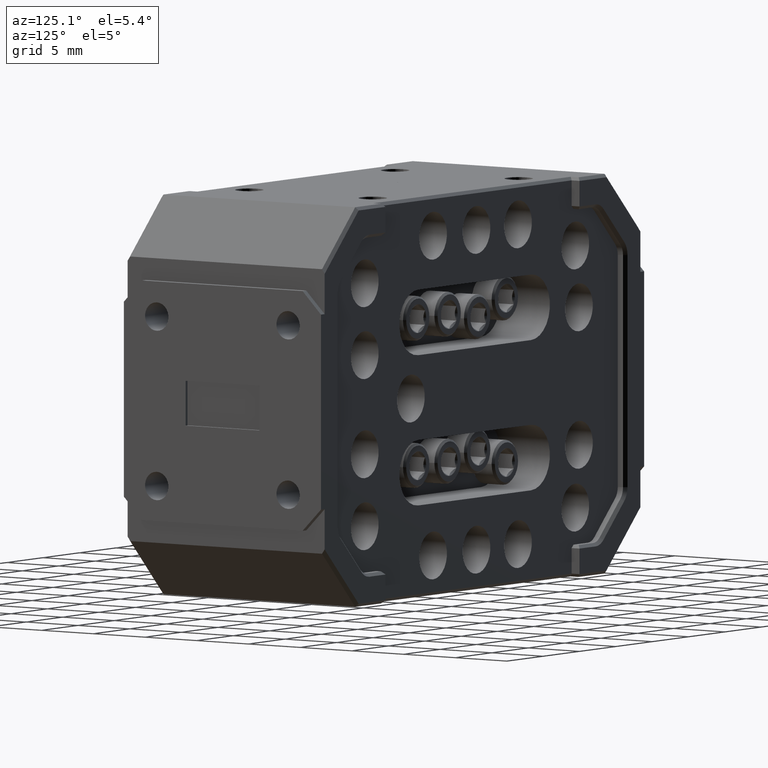
[diagram: clean part render]
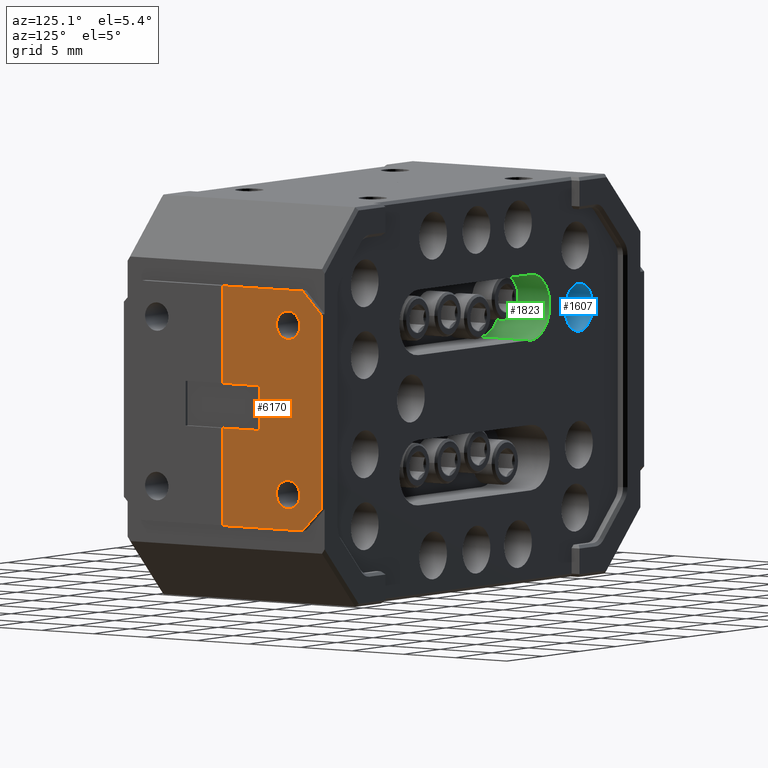
[diagram: same view with three faces highlighted in distinct colors, each labeled with its STEP entity id]
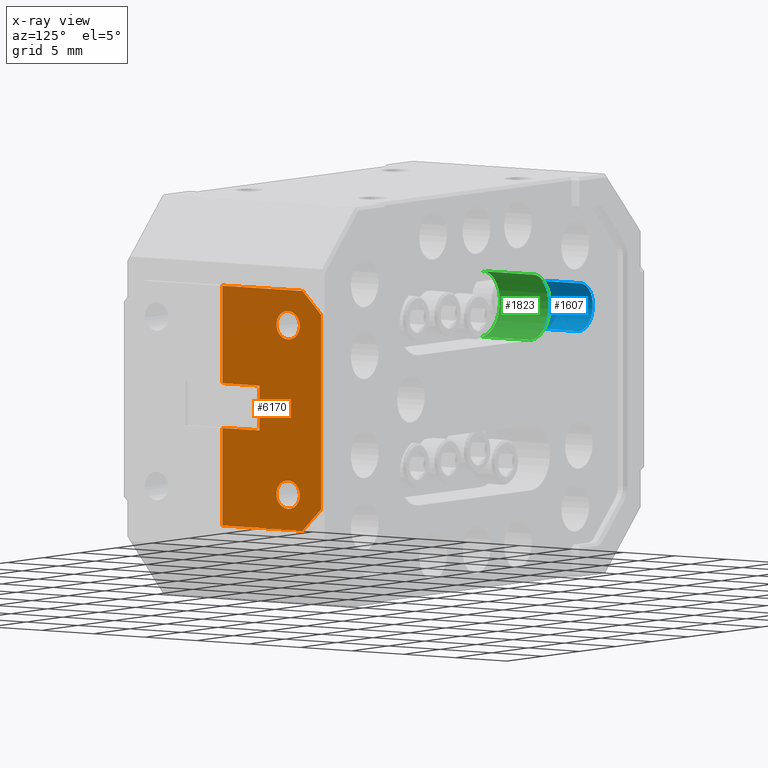
[diagram: x-ray of the same camera — body ghosted, the three highlighted faces saturated]
A machine part, auxiliary view with three faces highlighted in distinct colors.
The next image is the same camera in x-ray (body ghosted, the three faces saturated) — at least one of them is partly hidden behind the body in this view.
Their STEP definitions:

[orange] entity #6170 — the highlighted planar face has unit normal (1, 0, -0).
#61 = ORIENTED_EDGE ( 'NONE', *, *, #9224, .F. ) ;
#160 = CARTESIAN_POINT ( 'NONE',  ( 0.8750000000000007772, 0.3750000000000000555, -0.3050000000000006595 ) ) ;
#407 = VERTEX_POINT ( 'NONE', #12947 ) ;
#935 = CARTESIAN_POINT ( 'NONE',  ( 0.8750000000000007772, 0.000000000000000000, 0.6250000000000012212 ) ) ;
#1043 = LINE ( 'NONE', #26665, #5601 ) ;
#1089 = FACE_OUTER_BOUND ( 'NONE', #1122, .T. ) ;
#1122 = EDGE_LOOP ( 'NONE', ( #16416, #6624, #11178, #19140, #8240, #19080, #18036, #61, #26680, #11954 ) ) ;
#1229 = FACE_BOUND ( 'NONE', #1592, .T. ) ;
#1592 = EDGE_LOOP ( 'NONE', ( #15418, #22557 ) ) ;
#1805 = VERTEX_POINT ( 'NONE', #160 ) ;
#1931 = CARTESIAN_POINT ( 'NONE',  ( 0.8750000000000009992, 0.2500000000000000555, -0.2650000000000005129 ) ) ;
#2024 = LINE ( 'NONE', #8402, #14503 ) ;
#2828 = LINE ( 'NONE', #24042, #14920 ) ;
#2938 = DIRECTION ( 'NONE',  ( 1.000000000000000000, 0.000000000000000000, 0.000000000000000000 ) ) ;
#2973 = DIRECTION ( 'NONE',  ( 0.000000000000000000, 0.000000000000000000, 1.000000000000000000 ) ) ;
#2985 = CARTESIAN_POINT ( 'NONE',  ( 0.8750000000000013323, -1.365923996832131609E-16, -0.3750000000000008327 ) ) ;
#3472 = VERTEX_POINT ( 'NONE', #26729 ) ;
#4286 = VECTOR ( 'NONE', #17297, 39.37007874015748143 ) ;
#4418 = VERTEX_POINT ( 'NONE', #20711 ) ;
#5176 = CARTESIAN_POINT ( 'NONE',  ( 0.8750000000000007772, 0.000000000000000000, 0.07000000000000046463 ) ) ;
#5228 = DIRECTION ( 'NONE',  ( 0.000000000000000000, 0.000000000000000000, 1.000000000000000000 ) ) ;
#5254 = VERTEX_POINT ( 'NONE', #15181 ) ;
#5601 = VECTOR ( 'NONE', #14066, 39.37007874015748143 ) ;
#6027 = LINE ( 'NONE', #27386, #14003 ) ;
#6061 = ORIENTED_EDGE ( 'NONE', *, *, #20742, .F. ) ;
#6098 = DIRECTION ( 'NONE',  ( 1.000000000000000000, 0.000000000000000000, 0.000000000000000000 ) ) ;
#6170 = ADVANCED_FACE ( 'NONE', ( #1089, #15920, #1229 ), #7303, .T. ) ;
#6624 = ORIENTED_EDGE ( 'NONE', *, *, #25255, .T. ) ;
#6793 = VECTOR ( 'NONE', #2973, 39.37007874015748143 ) ;
#7243 = DIRECTION ( 'NONE',  ( 0.000000000000000000, -1.000000000000000000, 0.000000000000000000 ) ) ;
#7303 = PLANE ( 'NONE',  #9265 ) ;
#7328 = EDGE_CURVE ( 'NONE', #26927, #5254, #11080, .T. ) ;
#7398 = VERTEX_POINT ( 'NONE', #26312 ) ;
#7547 = CARTESIAN_POINT ( 'NONE',  ( 0.8750000000000007772, 0.1400000000000000688, -0.06999999999999978462 ) ) ;
#7709 = DIRECTION ( 'NONE',  ( 1.000000000000000000, 0.000000000000000000, -0.000000000000000000 ) ) ;
#8240 = ORIENTED_EDGE ( 'NONE', *, *, #16440, .T. ) ;
#8276 = DIRECTION ( 'NONE',  ( 0.000000000000000000, 0.000000000000000000, 1.000000000000000000 ) ) ;
#8402 = CARTESIAN_POINT ( 'NONE',  ( 0.8750000000000013323, -0.3749999999999999445, 0.3750000000000005551 ) ) ;
#8553 = EDGE_CURVE ( 'NONE', #4418, #3472, #20180, .T. ) ;
#8843 = LINE ( 'NONE', #13261, #4286 ) ;
#8946 = LINE ( 'NONE', #19613, #15526 ) ;
#8988 = DIRECTION ( 'NONE',  ( 1.000000000000000000, 0.000000000000000000, 0.000000000000000000 ) ) ;
#9054 = VERTEX_POINT ( 'NONE', #9914 ) ;
#9224 = EDGE_CURVE ( 'NONE', #21741, #407, #6027, .T. ) ;
#9230 = DIRECTION ( 'NONE',  ( 0.000000000000000000, -0.7071067811865482389, 0.7071067811865469066 ) ) ;
#9265 = AXIS2_PLACEMENT_3D ( 'NONE', #11895, #7709, #20613 ) ;
#9889 = EDGE_CURVE ( 'NONE', #21741, #19488, #2828, .T. ) ;
#9914 = CARTESIAN_POINT ( 'NONE',  ( 0.8750000000000009992, 0.2500000000000000555, -0.2205000000000005567 ) ) ;
#10126 = CARTESIAN_POINT ( 'NONE',  ( 0.8750000000000009992, 0.2500000000000000555, -0.2650000000000005129 ) ) ;
#11080 = LINE ( 'NONE', #26049, #12115 ) ;
#11178 = ORIENTED_EDGE ( 'NONE', *, *, #13842, .T. ) ;
#11404 = CARTESIAN_POINT ( 'NONE',  ( 0.8750000000000009992, 0.2500000000000000555, 0.2650000000000005684 ) ) ;
#11809 = VECTOR ( 'NONE', #8276, 39.37007874015748143 ) ;
#11895 = CARTESIAN_POINT ( 'NONE',  ( 0.8750000000000007772, 0.3750000000000000555, 0.6250000000000012212 ) ) ;
#11954 = ORIENTED_EDGE ( 'NONE', *, *, #19794, .F. ) ;
#12115 = VECTOR ( 'NONE', #15642, 39.37007874015748143 ) ;
#12466 = DIRECTION ( 'NONE',  ( 0.000000000000000000, 0.000000000000000000, -1.000000000000000000 ) ) ;
#12544 = DIRECTION ( 'NONE',  ( 0.000000000000000000, 0.000000000000000000, 1.000000000000000000 ) ) ;
#12805 = EDGE_CURVE ( 'NONE', #22666, #14814, #8946, .T. ) ;
#12947 = CARTESIAN_POINT ( 'NONE',  ( 0.8750000000000007772, 0.1400000000000000688, 0.07000000000000046463 ) ) ;
#13261 = CARTESIAN_POINT ( 'NONE',  ( 0.8750000000000007772, 0.8400000000000001910, 0.1600000000000007805 ) ) ;
#13490 = LINE ( 'NONE', #26529, #6793 ) ;
#13842 = EDGE_CURVE ( 'NONE', #1805, #22666, #13490, .T. ) ;
#14003 = VECTOR ( 'NONE', #12544, 39.37007874015748143 ) ;
#14066 = DIRECTION ( 'NONE',  ( 0.000000000000000000, 1.000000000000000000, 0.000000000000000000 ) ) ;
#14378 = CARTESIAN_POINT ( 'NONE',  ( 0.8750000000000007772, 0.000000000000000000, 0.6250000000000012212 ) ) ;
#14411 = ORIENTED_EDGE ( 'NONE', *, *, #8553, .F. ) ;
#14503 = VECTOR ( 'NONE', #23386, 39.37007874015748143 ) ;
#14814 = VERTEX_POINT ( 'NONE', #27416 ) ;
#14920 = VECTOR ( 'NONE', #7243, 39.37007874015748143 ) ;
#14931 = CIRCLE ( 'NONE', #20619, 0.04450000000000003259 ) ;
#15181 = CARTESIAN_POINT ( 'NONE',  ( 0.8750000000000013323, 0.3049999999999996048, -0.3750000000000008327 ) ) ;
#15418 = ORIENTED_EDGE ( 'NONE', *, *, #20637, .F. ) ;
#15526 = VECTOR ( 'NONE', #9230, 39.37007874015748143 ) ;
#15642 = DIRECTION ( 'NONE',  ( 0.000000000000000000, 1.000000000000000000, 0.000000000000000000 ) ) ;
#15920 = FACE_BOUND ( 'NONE', #17243, .T. ) ;
#16416 = ORIENTED_EDGE ( 'NONE', *, *, #7328, .T. ) ;
#16440 = EDGE_CURVE ( 'NONE', #14814, #20326, #2024, .T. ) ;
#16639 = AXIS2_PLACEMENT_3D ( 'NONE', #11404, #2938, #22207 ) ;
#16661 = VECTOR ( 'NONE', #5228, 39.37007874015748143 ) ;
#17030 = CARTESIAN_POINT ( 'NONE',  ( 0.8750000000000007772, -0.000000000000000000, -0.06999999999999978462 ) ) ;
#17187 = DIRECTION ( 'NONE',  ( 0.000000000000000000, 0.000000000000000000, -1.000000000000000000 ) ) ;
#17243 = EDGE_LOOP ( 'NONE', ( #14411, #6061 ) ) ;
#17267 = EDGE_CURVE ( 'NONE', #22100, #407, #1043, .T. ) ;
#17297 = DIRECTION ( 'NONE',  ( -0.000000000000000000, 0.7071067811865467956, 0.7071067811865482389 ) ) ;
#18036 = ORIENTED_EDGE ( 'NONE', *, *, #17267, .T. ) ;
#18705 = DIRECTION ( 'NONE',  ( 1.000000000000000000, 0.000000000000000000, 0.000000000000000000 ) ) ;
#18988 = DIRECTION ( 'NONE',  ( 0.000000000000000000, 0.000000000000000000, -1.000000000000000000 ) ) ;
#19080 = ORIENTED_EDGE ( 'NONE', *, *, #24551, .F. ) ;
#19140 = ORIENTED_EDGE ( 'NONE', *, *, #12805, .T. ) ;
#19355 = EDGE_CURVE ( 'NONE', #9054, #7398, #26814, .T. ) ;
#19488 = VERTEX_POINT ( 'NONE', #17030 ) ;
#19613 = CARTESIAN_POINT ( 'NONE',  ( 0.8750000000000007772, 0.2149999999999999689, 0.4650000000000006906 ) ) ;
#19794 = EDGE_CURVE ( 'NONE', #26927, #19488, #27262, .T. ) ;
#19923 = LINE ( 'NONE', #935, #16661 ) ;
#20180 = CIRCLE ( 'NONE', #16639, 0.04450000000000003259 ) ;
#20198 = AXIS2_PLACEMENT_3D ( 'NONE', #1931, #18705, #12466 ) ;
#20326 = VERTEX_POINT ( 'NONE', #26208 ) ;
#20613 = DIRECTION ( 'NONE',  ( 0.000000000000000000, 0.000000000000000000, 1.000000000000000000 ) ) ;
#20619 = AXIS2_PLACEMENT_3D ( 'NONE', #10126, #6098, #18988 ) ;
#20637 = EDGE_CURVE ( 'NONE', #7398, #9054, #14931, .T. ) ;
#20711 = CARTESIAN_POINT ( 'NONE',  ( 0.8750000000000009992, 0.2500000000000000555, 0.2205000000000005567 ) ) ;
#20742 = EDGE_CURVE ( 'NONE', #3472, #4418, #23292, .T. ) ;
#21616 = CARTESIAN_POINT ( 'NONE',  ( 0.8750000000000009992, 0.2500000000000000555, 0.2650000000000005684 ) ) ;
#21741 = VERTEX_POINT ( 'NONE', #7547 ) ;
#22100 = VERTEX_POINT ( 'NONE', #5176 ) ;
#22207 = DIRECTION ( 'NONE',  ( 0.000000000000000000, 0.000000000000000000, -1.000000000000000000 ) ) ;
#22557 = ORIENTED_EDGE ( 'NONE', *, *, #19355, .F. ) ;
#22666 = VERTEX_POINT ( 'NONE', #22899 ) ;
#22899 = CARTESIAN_POINT ( 'NONE',  ( 0.8750000000000007772, 0.3750000000000000555, 0.3050000000000006595 ) ) ;
#23292 = CIRCLE ( 'NONE', #25993, 0.04450000000000003259 ) ;
#23386 = DIRECTION ( 'NONE',  ( 0.000000000000000000, -1.000000000000000000, 0.000000000000000000 ) ) ;
#24042 = CARTESIAN_POINT ( 'NONE',  ( 0.8750000000000007772, 6.829619984160658046E-17, -0.06999999999999978462 ) ) ;
#24551 = EDGE_CURVE ( 'NONE', #22100, #20326, #19923, .T. ) ;
#25255 = EDGE_CURVE ( 'NONE', #5254, #1805, #8843, .T. ) ;
#25993 = AXIS2_PLACEMENT_3D ( 'NONE', #21616, #8988, #17187 ) ;
#26049 = CARTESIAN_POINT ( 'NONE',  ( 0.8750000000000013323, -0.3749999999999999445, -0.3750000000000008327 ) ) ;
#26208 = CARTESIAN_POINT ( 'NONE',  ( 0.8750000000000013323, -1.365923996832131609E-16, 0.3750000000000005551 ) ) ;
#26312 = CARTESIAN_POINT ( 'NONE',  ( 0.8750000000000009992, 0.2500000000000000555, -0.3095000000000005524 ) ) ;
#26529 = CARTESIAN_POINT ( 'NONE',  ( 0.8750000000000007772, 0.3750000000000000555, 0.6250000000000012212 ) ) ;
#26665 = CARTESIAN_POINT ( 'NONE',  ( 0.8750000000000007772, 6.829619984160658046E-17, 0.07000000000000046463 ) ) ;
#26680 = ORIENTED_EDGE ( 'NONE', *, *, #9889, .T. ) ;
#26729 = CARTESIAN_POINT ( 'NONE',  ( 0.8750000000000009992, 0.2500000000000000555, 0.3095000000000005524 ) ) ;
#26814 = CIRCLE ( 'NONE', #20198, 0.04450000000000003259 ) ;
#26927 = VERTEX_POINT ( 'NONE', #2985 ) ;
#27262 = LINE ( 'NONE', #14378, #11809 ) ;
#27386 = CARTESIAN_POINT ( 'NONE',  ( 0.8750000000000007772, 0.1400000000000000688, 3.414809992080333460E-16 ) ) ;
#27416 = CARTESIAN_POINT ( 'NONE',  ( 0.8750000000000013323, 0.3049999999999996048, 0.3750000000000005551 ) ) ;

[blue] entity #1607 — the highlighted cylindrical surface (edge-blend (fillet) strip) has radius 1.905 mm, axis along (0, 1, 0).
#84 = ORIENTED_EDGE ( 'NONE', *, *, #13307, .T. ) ;
#859 = VERTEX_POINT ( 'NONE', #5293 ) ;
#1251 = AXIS2_PLACEMENT_3D ( 'NONE', #4302, #27449, #10807 ) ;
#1607 = ADVANCED_FACE ( 'NONE', ( #15171 ), #8939, .F. ) ;
#2525 = EDGE_LOOP ( 'NONE', ( #5055, #15602, #25130, #84 ) ) ;
#3588 = VECTOR ( 'NONE', #13471, 39.37007874015748143 ) ;
#4302 = CARTESIAN_POINT ( 'NONE',  ( -0.5650000000000013900, 0.1550000000000000266, 0.2150000000000004685 ) ) ;
#5055 = ORIENTED_EDGE ( 'NONE', *, *, #21247, .F. ) ;
#5293 = CARTESIAN_POINT ( 'NONE',  ( -0.5650000000000013900, 0.1550000000000000266, 0.2900000000000004796 ) ) ;
#6129 = LINE ( 'NONE', #8766, #16671 ) ;
#6698 = DIRECTION ( 'NONE',  ( 0.000000000000000000, 0.000000000000000000, -1.000000000000000000 ) ) ;
#8766 = CARTESIAN_POINT ( 'NONE',  ( -0.5650000000000013900, 0.3450000000000000289, 0.2900000000000005906 ) ) ;
#8939 = CYLINDRICAL_SURFACE ( 'NONE', #10756, 0.07500000000000013600 ) ;
#9906 = VERTEX_POINT ( 'NONE', #17523 ) ;
#10464 = EDGE_CURVE ( 'NONE', #9906, #859, #15417, .T. ) ;
#10756 = AXIS2_PLACEMENT_3D ( 'NONE', #21163, #21560, #6698 ) ;
#10807 = DIRECTION ( 'NONE',  ( 0.000000000000000000, 0.000000000000000000, -1.000000000000000000 ) ) ;
#11671 = CIRCLE ( 'NONE', #12551, 0.07500000000000013600 ) ;
#12551 = AXIS2_PLACEMENT_3D ( 'NONE', #21442, #15075, #19368 ) ;
#12925 = CARTESIAN_POINT ( 'NONE',  ( -0.5650000000000013900, 0.3450000000000000289, 0.1400000000000003464 ) ) ;
#13307 = EDGE_CURVE ( 'NONE', #13514, #26416, #11671, .T. ) ;
#13471 = DIRECTION ( 'NONE',  ( 0.000000000000000000, 1.000000000000000000, 0.000000000000000000 ) ) ;
#13514 = VERTEX_POINT ( 'NONE', #16715 ) ;
#14546 = CARTESIAN_POINT ( 'NONE',  ( -0.5650000000000013900, 0.3450000000000000289, 0.2900000000000004796 ) ) ;
#15075 = DIRECTION ( 'NONE',  ( 0.000000000000000000, 1.000000000000000000, 0.000000000000000000 ) ) ;
#15171 = FACE_OUTER_BOUND ( 'NONE', #2525, .T. ) ;
#15417 = CIRCLE ( 'NONE', #1251, 0.07500000000000013600 ) ;
#15602 = ORIENTED_EDGE ( 'NONE', *, *, #10464, .F. ) ;
#16671 = VECTOR ( 'NONE', #17223, 39.37007874015748143 ) ;
#16715 = CARTESIAN_POINT ( 'NONE',  ( -0.5650000000000013900, 0.3450000000000000289, 0.1400000000000003464 ) ) ;
#17223 = DIRECTION ( 'NONE',  ( 0.000000000000000000, 1.000000000000000000, 0.000000000000000000 ) ) ;
#17241 = LINE ( 'NONE', #12925, #3588 ) ;
#17523 = CARTESIAN_POINT ( 'NONE',  ( -0.5650000000000013900, 0.1550000000000000266, 0.1400000000000003464 ) ) ;
#19368 = DIRECTION ( 'NONE',  ( 0.000000000000000000, 0.000000000000000000, -1.000000000000000000 ) ) ;
#21163 = CARTESIAN_POINT ( 'NONE',  ( -0.5650000000000013900, 0.3450000000000000289, 0.2150000000000004685 ) ) ;
#21247 = EDGE_CURVE ( 'NONE', #859, #26416, #6129, .T. ) ;
#21442 = CARTESIAN_POINT ( 'NONE',  ( -0.5650000000000013900, 0.3450000000000000289, 0.2150000000000004685 ) ) ;
#21560 = DIRECTION ( 'NONE',  ( 0.000000000000000000, 1.000000000000000000, 0.000000000000000000 ) ) ;
#25130 = ORIENTED_EDGE ( 'NONE', *, *, #27242, .T. ) ;
#26416 = VERTEX_POINT ( 'NONE', #14546 ) ;
#27242 = EDGE_CURVE ( 'NONE', #9906, #13514, #17241, .T. ) ;
#27449 = DIRECTION ( 'NONE',  ( 0.000000000000000000, 1.000000000000000000, 0.000000000000000000 ) ) ;

[green] entity #1823 — the highlighted cylindrical surface (edge-blend (fillet) strip) has radius 2.6035 mm, axis along (0, 1, 0).
#1268 = ORIENTED_EDGE ( 'NONE', *, *, #14483, .T. ) ;
#1823 = ADVANCED_FACE ( 'NONE', ( #17637 ), #8906, .F. ) ;
#2702 = DIRECTION ( 'NONE',  ( 0.000000000000000000, 1.000000000000000000, 0.000000000000000000 ) ) ;
#3183 = CARTESIAN_POINT ( 'NONE',  ( -0.3050000000000005485, 0.1549999999999999989, 0.3375000000000005218 ) ) ;
#5501 = EDGE_CURVE ( 'NONE', #14652, #13179, #9362, .T. ) ;
#5510 = EDGE_LOOP ( 'NONE', ( #1268, #19983, #11719, #25567 ) ) ;
#6171 = DIRECTION ( 'NONE',  ( -0.000000000000000000, 1.000000000000000000, -0.000000000000000000 ) ) ;
#6359 = LINE ( 'NONE', #19407, #25435 ) ;
#6667 = DIRECTION ( 'NONE',  ( 0.000000000000000000, 1.000000000000000000, 0.000000000000000000 ) ) ;
#8535 = VECTOR ( 'NONE', #9499, 39.37007874015748143 ) ;
#8906 = CYLINDRICAL_SURFACE ( 'NONE', #9003, 0.1025000000000001743 ) ;
#9003 = AXIS2_PLACEMENT_3D ( 'NONE', #24012, #6667, #21252 ) ;
#9128 = EDGE_CURVE ( 'NONE', #16747, #14652, #23748, .T. ) ;
#9362 = LINE ( 'NONE', #26410, #8535 ) ;
#9499 = DIRECTION ( 'NONE',  ( 0.000000000000000000, 1.000000000000000000, 0.000000000000000000 ) ) ;
#10956 = DIRECTION ( 'NONE',  ( 0.000000000000000000, 1.000000000000000000, 0.000000000000000000 ) ) ;
#11719 = ORIENTED_EDGE ( 'NONE', *, *, #5501, .F. ) ;
#12686 = DIRECTION ( 'NONE',  ( 0.000000000000000000, 0.000000000000000000, 1.000000000000000000 ) ) ;
#12949 = DIRECTION ( 'NONE',  ( 0.000000000000000000, 0.000000000000000000, 1.000000000000000000 ) ) ;
#13179 = VERTEX_POINT ( 'NONE', #21769 ) ;
#14483 = EDGE_CURVE ( 'NONE', #16747, #27090, #6359, .T. ) ;
#14652 = VERTEX_POINT ( 'NONE', #3183 ) ;
#14880 = CARTESIAN_POINT ( 'NONE',  ( -0.3050000000000004929, 0.3450000000000000289, 0.1325000000000002010 ) ) ;
#14938 = AXIS2_PLACEMENT_3D ( 'NONE', #23784, #2702, #12949 ) ;
#16747 = VERTEX_POINT ( 'NONE', #25380 ) ;
#17637 = FACE_OUTER_BOUND ( 'NONE', #5510, .T. ) ;
#19407 = CARTESIAN_POINT ( 'NONE',  ( -0.3050000000000004929, -0.6853868156985805093, 0.1325000000000002287 ) ) ;
#19983 = ORIENTED_EDGE ( 'NONE', *, *, #25672, .T. ) ;
#21133 = CIRCLE ( 'NONE', #14938, 0.1025000000000001743 ) ;
#21252 = DIRECTION ( 'NONE',  ( 0.000000000000000000, 0.000000000000000000, -1.000000000000000000 ) ) ;
#21769 = CARTESIAN_POINT ( 'NONE',  ( -0.3050000000000005485, 0.3450000000000000289, 0.3375000000000005218 ) ) ;
#23231 = CARTESIAN_POINT ( 'NONE',  ( -0.3050000000000005485, 0.1549999999999999989, 0.2350000000000004585 ) ) ;
#23748 = CIRCLE ( 'NONE', #24613, 0.1025000000000001743 ) ;
#23784 = CARTESIAN_POINT ( 'NONE',  ( -0.3050000000000005485, 0.3450000000000000289, 0.2350000000000004585 ) ) ;
#24012 = CARTESIAN_POINT ( 'NONE',  ( -0.3050000000000005485, -0.6853868156985805093, 0.2350000000000004585 ) ) ;
#24613 = AXIS2_PLACEMENT_3D ( 'NONE', #23231, #6171, #12686 ) ;
#25380 = CARTESIAN_POINT ( 'NONE',  ( -0.3050000000000004929, 0.1549999999999999989, 0.1325000000000002287 ) ) ;
#25435 = VECTOR ( 'NONE', #10956, 39.37007874015748143 ) ;
#25567 = ORIENTED_EDGE ( 'NONE', *, *, #9128, .F. ) ;
#25672 = EDGE_CURVE ( 'NONE', #27090, #13179, #21133, .T. ) ;
#26410 = CARTESIAN_POINT ( 'NONE',  ( -0.3050000000000005485, -0.6853868156985805093, 0.3375000000000005218 ) ) ;
#27090 = VERTEX_POINT ( 'NONE', #14880 ) ;